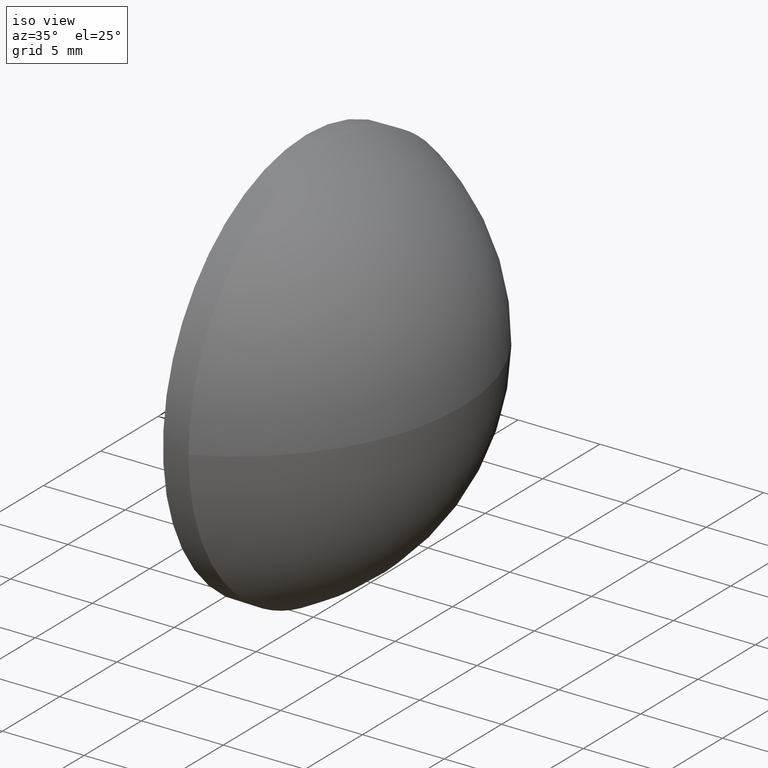
[diagram: clean part render]
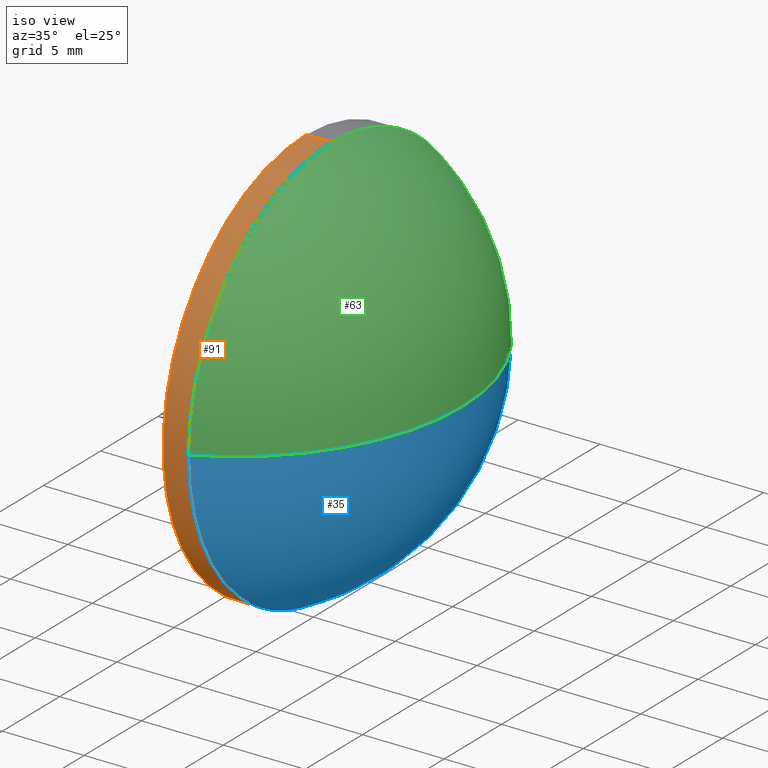
[diagram: same view with three faces highlighted in distinct colors, each labeled with its STEP entity id]
A machine part, iso view with three faces highlighted in distinct colors.
Their STEP definitions:

[orange] entity #91 — the highlighted cylindrical surface (partial cylindrical patch) has radius 12.5 mm, axis along (-1, -0, -0).
#2 = FACE_OUTER_BOUND ( 'NONE', #48, .T. ) ;
#10 = AXIS2_PLACEMENT_3D ( 'NONE', #104, #73, #119 ) ;
#14 = LINE ( 'NONE', #148, #174 ) ;
#15 = DIRECTION ( 'NONE',  ( -1.000000000000000000, -0.0000000000000000000, -0.0000000000000000000 ) ) ;
#17 = CARTESIAN_POINT ( 'NONE',  ( 489.9168740075318200, 159.2156972972453800, 0.0000000000000000000 ) ) ;
#19 = ORIENTED_EDGE ( 'NONE', *, *, #22, .F. ) ;
#22 = EDGE_CURVE ( 'NONE', #49, #121, #58, .T. ) ;
#27 = DIRECTION ( 'NONE',  ( -1.000000000000000000, -0.0000000000000000000, -0.0000000000000000000 ) ) ;
#31 = CARTESIAN_POINT ( 'NONE',  ( 489.9168740075318200, 171.7156972972453600, 0.0000000000000000000 ) ) ;
#32 = EDGE_CURVE ( 'NONE', #167, #175, #44, .T. ) ;
#33 = ORIENTED_EDGE ( 'NONE', *, *, #173, .T. ) ;
#36 = ORIENTED_EDGE ( 'NONE', *, *, #32, .T. ) ;
#37 = CARTESIAN_POINT ( 'NONE',  ( 488.3668740075318100, 171.7156972972453600, 0.0000000000000000000 ) ) ;
#40 = CARTESIAN_POINT ( 'NONE',  ( 489.9168740075318200, 171.7156972972453600, 0.0000000000000000000 ) ) ;
#44 = CIRCLE ( 'NONE', #88, 12.49999999999998400 ) ;
#48 = EDGE_LOOP ( 'NONE', ( #144, #36, #158, #33, #19 ) ) ;
#49 = VERTEX_POINT ( 'NONE', #184 ) ;
#51 = CARTESIAN_POINT ( 'NONE',  ( 489.9168740075318200, 171.7156972972453600, -12.49999999999998400 ) ) ;
#53 = CYLINDRICAL_SURFACE ( 'NONE', #10, 12.49999999999998400 ) ;
#58 = CIRCLE ( 'NONE', #179, 12.49999999999998400 ) ;
#60 = AXIS2_PLACEMENT_3D ( 'NONE', #31, #15, #186 ) ;
#65 = DIRECTION ( 'NONE',  ( -1.000000000000000000, -0.0000000000000000000, -0.0000000000000000000 ) ) ;
#73 = DIRECTION ( 'NONE',  ( -1.000000000000000000, -0.0000000000000000000, -0.0000000000000000000 ) ) ;
#88 = AXIS2_PLACEMENT_3D ( 'NONE', #40, #27, #141 ) ;
#89 = DIRECTION ( 'NONE',  ( -1.000000000000000000, -0.0000000000000000000, -0.0000000000000000000 ) ) ;
#91 = ADVANCED_FACE ( 'NONE', ( #2 ), #53, .T. ) ;
#92 = EDGE_CURVE ( 'NONE', #167, #49, #130, .T. ) ;
#98 = CIRCLE ( 'NONE', #60, 12.49999999999998400 ) ;
#100 = VERTEX_POINT ( 'NONE', #103 ) ;
#103 = CARTESIAN_POINT ( 'NONE',  ( 489.9168740075318200, 171.7156972972453600, 12.49999999999998400 ) ) ;
#104 = CARTESIAN_POINT ( 'NONE',  ( 486.8548427656419300, 171.7156972972453600, 0.0000000000000000000 ) ) ;
#111 = DIRECTION ( 'NONE',  ( 0.0000000000000000000, 0.0000000000000000000, 1.000000000000000000 ) ) ;
#119 = DIRECTION ( 'NONE',  ( 0.0000000000000000000, 0.0000000000000000000, 1.000000000000000000 ) ) ;
#121 = VERTEX_POINT ( 'NONE', #162 ) ;
#130 = LINE ( 'NONE', #149, #183 ) ;
#141 = DIRECTION ( 'NONE',  ( 0.0000000000000000000, 0.0000000000000000000, 1.000000000000000000 ) ) ;
#144 = ORIENTED_EDGE ( 'NONE', *, *, #92, .F. ) ;
#148 = CARTESIAN_POINT ( 'NONE',  ( 486.8548427656419300, 171.7156972972453600, 12.49999999999998400 ) ) ;
#149 = CARTESIAN_POINT ( 'NONE',  ( 486.8548427656419300, 171.7156972972453600, -12.49999999999998400 ) ) ;
#150 = EDGE_CURVE ( 'NONE', #175, #100, #98, .T. ) ;
#158 = ORIENTED_EDGE ( 'NONE', *, *, #150, .T. ) ;
#162 = CARTESIAN_POINT ( 'NONE',  ( 488.3668740075318100, 171.7156972972453600, 12.49999999999998400 ) ) ;
#167 = VERTEX_POINT ( 'NONE', #51 ) ;
#169 = DIRECTION ( 'NONE',  ( -1.000000000000000000, -0.0000000000000000000, -0.0000000000000000000 ) ) ;
#173 = EDGE_CURVE ( 'NONE', #100, #121, #14, .T. ) ;
#174 = VECTOR ( 'NONE', #89, 1000.000000000000000 ) ;
#175 = VERTEX_POINT ( 'NONE', #17 ) ;
#179 = AXIS2_PLACEMENT_3D ( 'NONE', #37, #169, #111 ) ;
#183 = VECTOR ( 'NONE', #65, 1000.000000000000000 ) ;
#184 = CARTESIAN_POINT ( 'NONE',  ( 488.3668740075318100, 171.7156972972453600, -12.49999999999998400 ) ) ;
#186 = DIRECTION ( 'NONE',  ( 0.0000000000000000000, 0.0000000000000000000, 1.000000000000000000 ) ) ;

[blue] entity #35 — the highlighted spherical surface has radius 13.802 mm.
#4 = ORIENTED_EDGE ( 'NONE', *, *, #67, .T. ) ;
#8 = AXIS2_PLACEMENT_3D ( 'NONE', #114, #42, #82 ) ;
#16 = FACE_OUTER_BOUND ( 'NONE', #77, .T. ) ;
#17 = CARTESIAN_POINT ( 'NONE',  ( 489.9168740075318200, 159.2156972972453800, 0.0000000000000000000 ) ) ;
#18 = CIRCLE ( 'NONE', #8, 13.80204402515722300 ) ;
#27 = DIRECTION ( 'NONE',  ( -1.000000000000000000, -0.0000000000000000000, -0.0000000000000000000 ) ) ;
#28 = CARTESIAN_POINT ( 'NONE',  ( 489.9168740075318200, 171.7156972972453600, 0.0000000000000000000 ) ) ;
#32 = EDGE_CURVE ( 'NONE', #167, #175, #44, .T. ) ;
#35 = ADVANCED_FACE ( 'NONE', ( #16 ), #172, .T. ) ;
#40 = CARTESIAN_POINT ( 'NONE',  ( 489.9168740075318200, 171.7156972972453600, 0.0000000000000000000 ) ) ;
#41 = ORIENTED_EDGE ( 'NONE', *, *, #32, .F. ) ;
#42 = DIRECTION ( 'NONE',  ( 0.0000000000000000000, 0.0000000000000000000, -1.000000000000000000 ) ) ;
#44 = CIRCLE ( 'NONE', #88, 12.49999999999998400 ) ;
#47 = DIRECTION ( 'NONE',  ( 0.0000000000000000000, -1.224646799147353200E-016, 1.000000000000000000 ) ) ;
#51 = CARTESIAN_POINT ( 'NONE',  ( 489.9168740075318200, 171.7156972972453600, -12.49999999999998400 ) ) ;
#54 = DIRECTION ( 'NONE',  ( 0.0000000000000000000, 0.0000000000000000000, 1.000000000000000000 ) ) ;
#57 = CARTESIAN_POINT ( 'NONE',  ( 484.0648299823745900, 171.7156972972453800, 0.0000000000000000000 ) ) ;
#59 = EDGE_CURVE ( 'NONE', #128, #167, #93, .T. ) ;
#67 = EDGE_CURVE ( 'NONE', #151, #175, #18, .T. ) ;
#75 = CARTESIAN_POINT ( 'NONE',  ( 489.9168740075318200, 184.2156972972453600, 1.530808498934187400E-015 ) ) ;
#77 = EDGE_LOOP ( 'NONE', ( #117, #4, #41, #137 ) ) ;
#82 = DIRECTION ( 'NONE',  ( -1.000000000000000000, 0.0000000000000000000, 0.0000000000000000000 ) ) ;
#85 = EDGE_CURVE ( 'NONE', #151, #128, #90, .T. ) ;
#88 = AXIS2_PLACEMENT_3D ( 'NONE', #40, #27, #141 ) ;
#90 = CIRCLE ( 'NONE', #145, 13.80204402515719600 ) ;
#93 = CIRCLE ( 'NONE', #94, 12.49999999999998400 ) ;
#94 = AXIS2_PLACEMENT_3D ( 'NONE', #28, #143, #170 ) ;
#96 = DIRECTION ( 'NONE',  ( 0.0000000000000000000, -1.000000000000000000, 0.0000000000000000000 ) ) ;
#109 = AXIS2_PLACEMENT_3D ( 'NONE', #57, #54, #96 ) ;
#114 = CARTESIAN_POINT ( 'NONE',  ( 484.0648299823745900, 171.7156972972453800, 0.0000000000000000000 ) ) ;
#117 = ORIENTED_EDGE ( 'NONE', *, *, #85, .F. ) ;
#118 = CARTESIAN_POINT ( 'NONE',  ( 484.0648299823745900, 171.7156972972453800, 0.0000000000000000000 ) ) ;
#128 = VERTEX_POINT ( 'NONE', #75 ) ;
#129 = CARTESIAN_POINT ( 'NONE',  ( 497.8668740075318100, 171.7156972972453800, 0.0000000000000000000 ) ) ;
#137 = ORIENTED_EDGE ( 'NONE', *, *, #59, .F. ) ;
#141 = DIRECTION ( 'NONE',  ( 0.0000000000000000000, 0.0000000000000000000, 1.000000000000000000 ) ) ;
#143 = DIRECTION ( 'NONE',  ( -1.000000000000000000, -0.0000000000000000000, -0.0000000000000000000 ) ) ;
#145 = AXIS2_PLACEMENT_3D ( 'NONE', #118, #47, #177 ) ;
#151 = VERTEX_POINT ( 'NONE', #129 ) ;
#167 = VERTEX_POINT ( 'NONE', #51 ) ;
#170 = DIRECTION ( 'NONE',  ( 0.0000000000000000000, 0.0000000000000000000, 1.000000000000000000 ) ) ;
#172 = SPHERICAL_SURFACE ( 'NONE', #109, 13.80204402515720300 ) ;
#175 = VERTEX_POINT ( 'NONE', #17 ) ;
#177 = DIRECTION ( 'NONE',  ( 0.0000000000000000000, -1.000000000000000000, -1.224646799147353700E-016 ) ) ;

[green] entity #63 — the highlighted spherical surface has radius 13.802 mm.
#8 = AXIS2_PLACEMENT_3D ( 'NONE', #114, #42, #82 ) ;
#11 = ORIENTED_EDGE ( 'NONE', *, *, #67, .F. ) ;
#12 = EDGE_LOOP ( 'NONE', ( #11, #86, #72, #113 ) ) ;
#15 = DIRECTION ( 'NONE',  ( -1.000000000000000000, -0.0000000000000000000, -0.0000000000000000000 ) ) ;
#17 = CARTESIAN_POINT ( 'NONE',  ( 489.9168740075318200, 159.2156972972453800, 0.0000000000000000000 ) ) ;
#18 = CIRCLE ( 'NONE', #8, 13.80204402515722300 ) ;
#26 = DIRECTION ( 'NONE',  ( 0.0000000000000000000, 0.0000000000000000000, 1.000000000000000000 ) ) ;
#31 = CARTESIAN_POINT ( 'NONE',  ( 489.9168740075318200, 171.7156972972453600, 0.0000000000000000000 ) ) ;
#42 = DIRECTION ( 'NONE',  ( 0.0000000000000000000, 0.0000000000000000000, -1.000000000000000000 ) ) ;
#43 = EDGE_CURVE ( 'NONE', #100, #128, #165, .T. ) ;
#47 = DIRECTION ( 'NONE',  ( 0.0000000000000000000, -1.224646799147353200E-016, 1.000000000000000000 ) ) ;
#60 = AXIS2_PLACEMENT_3D ( 'NONE', #31, #15, #186 ) ;
#63 = ADVANCED_FACE ( 'NONE', ( #80 ), #105, .T. ) ;
#67 = EDGE_CURVE ( 'NONE', #151, #175, #18, .T. ) ;
#71 = DIRECTION ( 'NONE',  ( -1.000000000000000000, -0.0000000000000000000, -0.0000000000000000000 ) ) ;
#72 = ORIENTED_EDGE ( 'NONE', *, *, #43, .F. ) ;
#75 = CARTESIAN_POINT ( 'NONE',  ( 489.9168740075318200, 184.2156972972453600, 1.530808498934187400E-015 ) ) ;
#80 = FACE_OUTER_BOUND ( 'NONE', #12, .T. ) ;
#81 = CARTESIAN_POINT ( 'NONE',  ( 489.9168740075318200, 171.7156972972453600, 0.0000000000000000000 ) ) ;
#82 = DIRECTION ( 'NONE',  ( -1.000000000000000000, 0.0000000000000000000, 0.0000000000000000000 ) ) ;
#85 = EDGE_CURVE ( 'NONE', #151, #128, #90, .T. ) ;
#86 = ORIENTED_EDGE ( 'NONE', *, *, #85, .T. ) ;
#90 = CIRCLE ( 'NONE', #145, 13.80204402515719600 ) ;
#97 = AXIS2_PLACEMENT_3D ( 'NONE', #81, #71, #26 ) ;
#98 = CIRCLE ( 'NONE', #60, 12.49999999999998400 ) ;
#100 = VERTEX_POINT ( 'NONE', #103 ) ;
#103 = CARTESIAN_POINT ( 'NONE',  ( 489.9168740075318200, 171.7156972972453600, 12.49999999999998400 ) ) ;
#105 = SPHERICAL_SURFACE ( 'NONE', #115, 13.80204402515720300 ) ;
#112 = DIRECTION ( 'NONE',  ( 0.0000000000000000000, -1.000000000000000000, 0.0000000000000000000 ) ) ;
#113 = ORIENTED_EDGE ( 'NONE', *, *, #150, .F. ) ;
#114 = CARTESIAN_POINT ( 'NONE',  ( 484.0648299823745900, 171.7156972972453800, 0.0000000000000000000 ) ) ;
#115 = AXIS2_PLACEMENT_3D ( 'NONE', #157, #126, #112 ) ;
#118 = CARTESIAN_POINT ( 'NONE',  ( 484.0648299823745900, 171.7156972972453800, 0.0000000000000000000 ) ) ;
#126 = DIRECTION ( 'NONE',  ( 0.0000000000000000000, 0.0000000000000000000, 1.000000000000000000 ) ) ;
#128 = VERTEX_POINT ( 'NONE', #75 ) ;
#129 = CARTESIAN_POINT ( 'NONE',  ( 497.8668740075318100, 171.7156972972453800, 0.0000000000000000000 ) ) ;
#145 = AXIS2_PLACEMENT_3D ( 'NONE', #118, #47, #177 ) ;
#150 = EDGE_CURVE ( 'NONE', #175, #100, #98, .T. ) ;
#151 = VERTEX_POINT ( 'NONE', #129 ) ;
#157 = CARTESIAN_POINT ( 'NONE',  ( 484.0648299823745900, 171.7156972972453800, 0.0000000000000000000 ) ) ;
#165 = CIRCLE ( 'NONE', #97, 12.49999999999998400 ) ;
#175 = VERTEX_POINT ( 'NONE', #17 ) ;
#177 = DIRECTION ( 'NONE',  ( 0.0000000000000000000, -1.000000000000000000, -1.224646799147353700E-016 ) ) ;
#186 = DIRECTION ( 'NONE',  ( 0.0000000000000000000, 0.0000000000000000000, 1.000000000000000000 ) ) ;